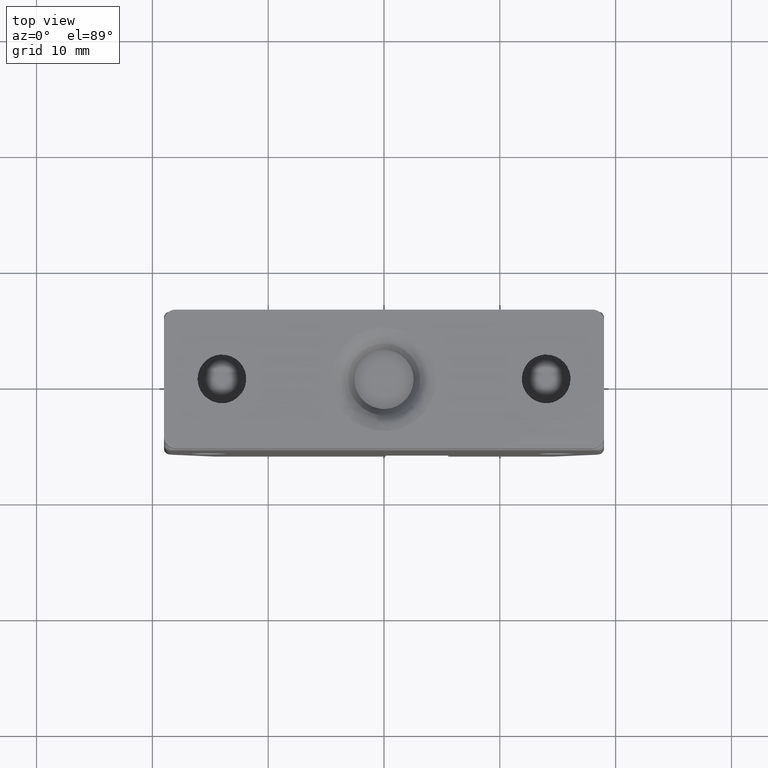
[diagram: clean part render]
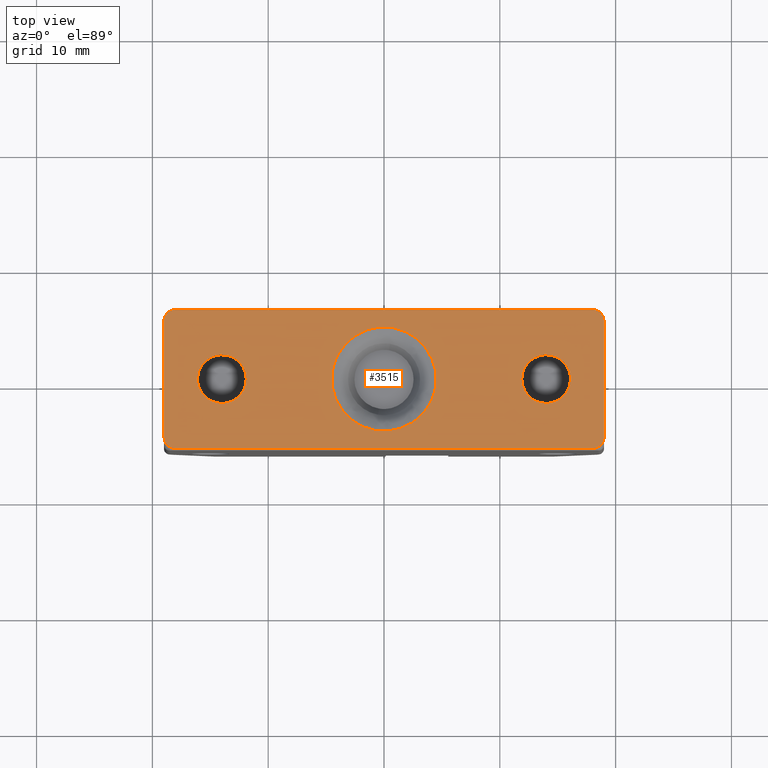
[diagram: same view with one face highlighted and labeled with its STEP entity id]
A machine part, top view. The second image highlights one B-rep face of the part: STEP entity #3515.
In plain terms, the highlighted face is a freeform B-spline surface patch.
Its self-contained STEP definition (entity closure, byte-faithful):
#2696=CARTESIAN_POINT('',(-13.871798066978030,-2.096083076678762,8.400000000000000));
#2697=VERTEX_POINT('',#2696);
#2703=CARTESIAN_POINT('',(-11.900000000060681,-3.407176E-012,8.400000000000000));
#2704=VERTEX_POINT('',#2703);
#2705=CARTESIAN_POINT('',(-11.900000000060681,-3.407176E-012,8.400000000000000));
#2706=CARTESIAN_POINT('',(-11.900000000060686,-1.975482740448824,8.400000000000000));
#2707=CARTESIAN_POINT('',(-13.871798066978025,-2.096083076678763,8.400000000000000));
#2715=(BOUNDED_CURVE()B_SPLINE_CURVE(2,(#2705,#2706,#2707),.UNSPECIFIED.,.F.,.U.)B_SPLINE_CURVE_WITH_KNOTS((3,3),(0.500000000000000,0.739332962237643),.UNSPECIFIED.)CURVE()GEOMETRIC_REPRESENTATION_ITEM()RATIONAL_B_SPLINE_CURVE((1.0,0.719603993288233,0.976072041663932))REPRESENTATION_ITEM(''));
#2716=EDGE_CURVE('',#2704,#2697,#2715,.T.);
#2718=CARTESIAN_POINT('',(-14.128201933128620,2.096083076671948,8.400000000000000));
#2719=VERTEX_POINT('',#2718);
#2720=CARTESIAN_POINT('',(-14.128201933128612,2.096083076671949,8.400000000000000));
#2721=CARTESIAN_POINT('',(-14.064160803006475,2.099999999989227,8.400000000000000));
#2722=CARTESIAN_POINT('',(-14.000000000053319,2.099999999989228,8.400000000000000));
#2723=CARTESIAN_POINT('',(-11.900000000060684,2.099999999989228,8.400000000000000));
#2724=CARTESIAN_POINT('',(-11.900000000060681,-3.407176E-012,8.400000000000000));
#2732=(BOUNDED_CURVE()B_SPLINE_CURVE(2,(#2720,#2721,#2722,#2723,#2724),.UNSPECIFIED.,.F.,.U.)B_SPLINE_CURVE_WITH_KNOTS((3,2,3),(0.239332962237643,0.250000000000000,0.500000000000000),.UNSPECIFIED.)CURVE()GEOMETRIC_REPRESENTATION_ITEM()RATIONAL_B_SPLINE_CURVE((0.976072041663932,0.987502787898314,1.0,0.707106781186547,1.0))REPRESENTATION_ITEM(''));
#2733=EDGE_CURVE('',#2719,#2704,#2732,.T.);
#2763=CARTESIAN_POINT('',(-16.100000000045959,-3.407176E-012,8.400000000000000));
#2764=VERTEX_POINT('',#2763);
#2765=CARTESIAN_POINT('',(-16.100000000045959,-3.407176E-012,8.400000000000000));
#2766=CARTESIAN_POINT('',(-16.100000000045952,1.975482740442009,8.400000000000000));
#2767=CARTESIAN_POINT('',(-14.128201933128613,2.096083076671949,8.400000000000000));
#2775=(BOUNDED_CURVE()B_SPLINE_CURVE(2,(#2765,#2766,#2767),.UNSPECIFIED.,.F.,.U.)B_SPLINE_CURVE_WITH_KNOTS((3,3),(0.0,0.239332962237643),.UNSPECIFIED.)CURVE()GEOMETRIC_REPRESENTATION_ITEM()RATIONAL_B_SPLINE_CURVE((1.0,0.719603993288233,0.976072041663932))REPRESENTATION_ITEM(''));
#2776=EDGE_CURVE('',#2764,#2719,#2775,.T.);
#2778=CARTESIAN_POINT('',(-13.871798066978025,-2.096083076678763,8.400000000000000));
#2779=CARTESIAN_POINT('',(-13.935839197100165,-2.099999999996042,8.400000000000000));
#2780=CARTESIAN_POINT('',(-14.000000000053319,-2.099999999996042,8.400000000000000));
#2781=CARTESIAN_POINT('',(-16.100000000045956,-2.099999999996042,8.400000000000000));
#2782=CARTESIAN_POINT('',(-16.100000000045959,-3.407176E-012,8.400000000000000));
#2790=(BOUNDED_CURVE()B_SPLINE_CURVE(2,(#2778,#2779,#2780,#2781,#2782),.UNSPECIFIED.,.F.,.U.)B_SPLINE_CURVE_WITH_KNOTS((3,2,3),(0.739332962237643,0.750000000000000,1.0),.UNSPECIFIED.)CURVE()GEOMETRIC_REPRESENTATION_ITEM()RATIONAL_B_SPLINE_CURVE((0.976072041663932,0.987502787898314,1.0,0.707106781186547,1.0))REPRESENTATION_ITEM(''));
#2791=EDGE_CURVE('',#2697,#2764,#2790,.T.);
#3000=CARTESIAN_POINT('',(14.128201933021190,-2.096083076678766,8.400000000000000));
#3001=VERTEX_POINT('',#3000);
#3007=CARTESIAN_POINT('',(16.099999999938539,-3.410605E-012,8.400000000000000));
#3008=VERTEX_POINT('',#3007);
#3009=CARTESIAN_POINT('',(16.099999999938539,-3.410605E-012,8.400000000000000));
#3010=CARTESIAN_POINT('',(16.099999999938536,-1.975482740448830,8.400000000000002));
#3011=CARTESIAN_POINT('',(14.128201933021193,-2.096083076678765,8.399999999999999));
#3019=(BOUNDED_CURVE()B_SPLINE_CURVE(2,(#3009,#3010,#3011),.UNSPECIFIED.,.F.,.U.)B_SPLINE_CURVE_WITH_KNOTS((3,3),(0.500000000000000,0.739332962237643),.UNSPECIFIED.)CURVE()GEOMETRIC_REPRESENTATION_ITEM()RATIONAL_B_SPLINE_CURVE((1.0,0.719603993288233,0.976072041663932))REPRESENTATION_ITEM(''));
#3020=EDGE_CURVE('',#3008,#3001,#3019,.T.);
#3022=CARTESIAN_POINT('',(13.871798066870610,2.096083076671945,8.400000000000000));
#3023=VERTEX_POINT('',#3022);
#3024=CARTESIAN_POINT('',(13.871798066870610,2.096083076671946,8.400000000000000));
#3025=CARTESIAN_POINT('',(13.935839196992742,2.099999999989225,8.400000000000000));
#3026=CARTESIAN_POINT('',(13.999999999945899,2.099999999989224,8.400000000000000));
#3027=CARTESIAN_POINT('',(16.099999999938532,2.099999999989224,8.400000000000000));
#3028=CARTESIAN_POINT('',(16.099999999938539,-3.410605E-012,8.400000000000000));
#3036=(BOUNDED_CURVE()B_SPLINE_CURVE(2,(#3024,#3025,#3026,#3027,#3028),.UNSPECIFIED.,.F.,.U.)B_SPLINE_CURVE_WITH_KNOTS((3,2,3),(0.239332962237643,0.250000000000000,0.500000000000000),.UNSPECIFIED.)CURVE()GEOMETRIC_REPRESENTATION_ITEM()RATIONAL_B_SPLINE_CURVE((0.976072041663932,0.987502787898314,1.0,0.707106781186547,1.0))REPRESENTATION_ITEM(''));
#3037=EDGE_CURVE('',#3023,#3008,#3036,.T.);
#3067=CARTESIAN_POINT('',(11.899999999953261,-3.410605E-012,8.400000000000000));
#3068=VERTEX_POINT('',#3067);
#3069=CARTESIAN_POINT('',(11.899999999953261,-3.410605E-012,8.400000000000000));
#3070=CARTESIAN_POINT('',(11.899999999953263,1.975482740442008,8.400000000000000));
#3071=CARTESIAN_POINT('',(13.871798066870600,2.096083076671945,8.399999999999999));
#3079=(BOUNDED_CURVE()B_SPLINE_CURVE(2,(#3069,#3070,#3071),.UNSPECIFIED.,.F.,.U.)B_SPLINE_CURVE_WITH_KNOTS((3,3),(0.0,0.239332962237643),.UNSPECIFIED.)CURVE()GEOMETRIC_REPRESENTATION_ITEM()RATIONAL_B_SPLINE_CURVE((1.0,0.719603993288233,0.976072041663932))REPRESENTATION_ITEM(''));
#3080=EDGE_CURVE('',#3068,#3023,#3079,.T.);
#3082=CARTESIAN_POINT('',(14.128201933021193,-2.096083076678765,8.399999999999999));
#3083=CARTESIAN_POINT('',(14.064160802899059,-2.099999999996045,8.400000000000000));
#3084=CARTESIAN_POINT('',(13.999999999945899,-2.099999999996045,8.400000000000000));
#3085=CARTESIAN_POINT('',(11.899999999953261,-2.099999999996045,8.400000000000000));
#3086=CARTESIAN_POINT('',(11.899999999953261,-3.410605E-012,8.400000000000000));
#3094=(BOUNDED_CURVE()B_SPLINE_CURVE(2,(#3082,#3083,#3084,#3085,#3086),.UNSPECIFIED.,.F.,.U.)B_SPLINE_CURVE_WITH_KNOTS((3,2,3),(0.739332962237643,0.750000000000000,1.0),.UNSPECIFIED.)CURVE()GEOMETRIC_REPRESENTATION_ITEM()RATIONAL_B_SPLINE_CURVE((0.976072041663932,0.987502787898315,1.0,0.707106781186547,1.0))REPRESENTATION_ITEM(''));
#3095=EDGE_CURVE('',#3001,#3068,#3094,.T.);
#3258=CARTESIAN_POINT('',(-3.943380059696138,2.167891533303249,8.400000000000000));
#3259=VERTEX_POINT('',#3258);
#3273=CARTESIAN_POINT('',(-4.500000000055100,-3.410466E-012,8.400000000000000));
#3274=VERTEX_POINT('',#3273);
#3275=CARTESIAN_POINT('',(-4.500000000055100,-3.410466E-012,8.400000000000000));
#3276=CARTESIAN_POINT('',(-4.499999999806614,1.155403621587050,8.400000000000000));
#3277=CARTESIAN_POINT('',(-3.943380059696137,2.167891533303249,8.400000000000000));
#3285=(BOUNDED_CURVE()B_SPLINE_CURVE(2,(#3275,#3276,#3277),.UNSPECIFIED.,.F.,.U.)B_SPLINE_CURVE_WITH_KNOTS((3,3),(0.0,0.082050816107036),.UNSPECIFIED.)CURVE()GEOMETRIC_REPRESENTATION_ITEM()RATIONAL_B_SPLINE_CURVE((1.0,0.903871489456558,0.870842360843062))REPRESENTATION_ITEM(''));
#3286=EDGE_CURVE('',#3274,#3259,#3285,.T.);
#3288=CARTESIAN_POINT('',(3.943380059696138,-2.167891533310069,8.399999999999999));
#3289=VERTEX_POINT('',#3288);
#3290=CARTESIAN_POINT('',(3.943380059696138,-2.167891533310069,8.399999999999999));
#3291=CARTESIAN_POINT('',(3.824206360642705,-2.384697434903158,8.400000000000002));
#3292=CARTESIAN_POINT('',(3.541414295097837,-2.811517136235743,8.399999999999999));
#3293=CARTESIAN_POINT('',(3.062644237607502,-3.320108352274720,8.399999999999999));
#3294=CARTESIAN_POINT('',(2.477983191689846,-3.779632251900886,8.400000000000016));
#3295=CARTESIAN_POINT('',(1.880148186429658,-4.111164978560826,8.399999999999949));
#3296=CARTESIAN_POINT('',(1.149995207915080,-4.370592244534727,8.400000000000031));
#3297=CARTESIAN_POINT('',(0.508506816770866,-4.488402516735532,8.399999999999988));
#3298=CARTESIAN_POINT('',(-0.249984474954547,-4.512803980713327,8.400000000000013));
#3299=CARTESIAN_POINT('',(-0.928378960144460,-4.425762362881049,8.399999999999986));
#3300=CARTESIAN_POINT('',(-1.669156352947316,-4.198432939596492,8.400000000000002));
#3301=CARTESIAN_POINT('',(-2.367231118986370,-3.859260186526037,8.399999999999995));
#3302=CARTESIAN_POINT('',(-2.964345589350004,-3.411828357541758,8.400000000000020));
#3303=CARTESIAN_POINT('',(-3.491526411107899,-2.865931208942745,8.400000000000008));
#3304=CARTESIAN_POINT('',(-3.869697893895844,-2.334533017724503,8.399999999999981));
#3305=CARTESIAN_POINT('',(-4.178479953233402,-1.709231662596770,8.400000000000016));
#3306=CARTESIAN_POINT('',(-4.426884625076130,-0.958622126401327,8.399999999999992));
#3307=CARTESIAN_POINT('',(-4.500101237488820,-0.371105051717921,8.399999999999976));
#3308=CARTESIAN_POINT('',(-4.500000000055100,-3.410466E-012,8.400000000000000));
#3309=B_SPLINE_CURVE_WITH_KNOTS('',3,(#3290,#3291,#3292,#3293,#3294,#3295,#3296,#3297,#3298,#3299,#3300,#3301,#3302,#3303,#3304,#3305,#3306,#3307,#3308),.UNSPECIFIED.,.F.,.U.,(4,1,1,1,1,1,1,1,1,1,1,1,1,1,1,1,4),(0.000000030563456,0.742203889745745,1.530799776799331,2.087459032400474,2.968821323137799,3.571864845586623,4.406840036550884,4.917104166606298,5.844835925426524,6.447890164458012,7.236494469969927,8.164249707795777,8.674517140209691,9.509507342878527,10.112554800119090,10.761986831711081,11.875272806694801),.UNSPECIFIED.);
#3310=EDGE_CURVE('',#3289,#3274,#3309,.T.);
#3359=CARTESIAN_POINT('',(4.500000000055100,-3.410605E-012,8.400000000000000));
#3360=VERTEX_POINT('',#3359);
#3361=CARTESIAN_POINT('',(4.500000000055100,-3.410605E-012,8.400000000000000));
#3362=CARTESIAN_POINT('',(4.499999999806615,-1.155403621593870,8.400000000000000));
#3363=CARTESIAN_POINT('',(3.943380059696138,-2.167891533310070,8.399999999999999));
#3371=(BOUNDED_CURVE()B_SPLINE_CURVE(2,(#3361,#3362,#3363),.UNSPECIFIED.,.F.,.U.)B_SPLINE_CURVE_WITH_KNOTS((3,3),(0.500000000000000,0.582050816107036),.UNSPECIFIED.)CURVE()GEOMETRIC_REPRESENTATION_ITEM()RATIONAL_B_SPLINE_CURVE((1.0,0.903871489456558,0.870842360843062))REPRESENTATION_ITEM(''));
#3372=EDGE_CURVE('',#3360,#3289,#3371,.T.);
#3374=CARTESIAN_POINT('',(-3.943380059696138,2.167891533303249,8.400000000000000));
#3375=CARTESIAN_POINT('',(-3.824210066108246,2.384699587601643,8.400000000000002));
#3376=CARTESIAN_POINT('',(-3.575683348158285,2.759773762606233,8.399999999999995));
#3377=CARTESIAN_POINT('',(-3.160174514410992,3.219793231620461,8.399999999999999));
#3378=CARTESIAN_POINT('',(-2.691388805990171,3.624792891323443,8.400000000000015));
#3379=CARTESIAN_POINT('',(-2.156985186348380,3.969850060704459,8.399999999999977));
#3380=CARTESIAN_POINT('',(-1.604597706032400,4.215666101578752,8.399999999999999));
#3381=CARTESIAN_POINT('',(-1.027906060214288,4.394161980446580,8.399999999999997));
#3382=CARTESIAN_POINT('',(-0.324669045469935,4.515886446604847,8.400000000000023));
#3383=CARTESIAN_POINT('',(0.406178086185675,4.501711703555927,8.399999999999945));
#3384=CARTESIAN_POINT('',(1.076519368948576,4.380250010033963,8.400000000000073));
#3385=CARTESIAN_POINT('',(1.728433245350994,4.180297062072626,8.399999999999940));
#3386=CARTESIAN_POINT('',(2.476125642573424,3.797713634089929,8.400000000000020));
#3387=CARTESIAN_POINT('',(3.222953509587842,3.188492743032616,8.399999999999997));
#3388=CARTESIAN_POINT('',(3.767336887091098,2.508591319156269,8.399999999999999));
#3389=CARTESIAN_POINT('',(4.175814038643297,1.742137116815214,8.400000000000009));
#3390=CARTESIAN_POINT('',(4.436006933545203,0.927731206359360,8.399999999999977));
#3391=CARTESIAN_POINT('',(4.500037569016865,0.309248195884243,8.400000000000029));
#3392=CARTESIAN_POINT('',(4.500000000055100,-3.410605E-012,8.400000000000000));
#3393=B_SPLINE_CURVE_WITH_KNOTS('',3,(#3374,#3375,#3376,#3377,#3378,#3379,#3380,#3381,#3382,#3383,#3384,#3385,#3386,#3387,#3388,#3389,#3390,#3391,#3392),.UNSPECIFIED.,.F.,.U.,(4,1,1,1,1,1,1,1,1,1,1,1,1,1,1,1,4),(0.000000030550018,0.742203889733132,1.345247072046858,1.855517487288996,2.597729414893385,3.247151394638959,3.664650374708641,4.406840036542501,5.380957365591712,5.844835925419722,6.447890164451877,7.422039370796668,8.349802033187444,9.323955179871344,10.019774710953040,10.947530941025899,11.875272806694850),.UNSPECIFIED.);
#3394=EDGE_CURVE('',#3259,#3360,#3393,.T.);
#3402=CARTESIAN_POINT('',(-20.898099926349449,6.599399976610666,8.400000000000000));
#3403=CARTESIAN_POINT('',(20.898100945586521,6.599399976610666,8.400000000000000));
#3404=CARTESIAN_POINT('',(-20.898099926349449,-6.599400298737627,8.400000000000000));
#3405=CARTESIAN_POINT('',(20.898100945586521,-6.599400298737627,8.400000000000000));
#3406=B_SPLINE_SURFACE_WITH_KNOTS('',1,1,((#3402,#3404),(#3403,#3405)),.UNSPECIFIED.,.F.,.F.,.U.,(2,2),(2,2),(0.0,41.796200871935973),(0.0,13.198800275348290),.UNSPECIFIED.);
#3407=CARTESIAN_POINT('',(18.999999999998501,-5.000000000130880,8.399999999999960));
#3408=VERTEX_POINT('',#3407);
#3409=CARTESIAN_POINT('',(18.999999999998501,4.999999999869000,8.399999999999960));
#3410=VERTEX_POINT('',#3409);
#3411=CARTESIAN_POINT('',(18.999999999998501,-5.000000000130880,8.399999999999960));
#3412=CARTESIAN_POINT('',(18.999999999998501,4.999999999869000,8.399999999999960));
#3413=QUASI_UNIFORM_CURVE('',1,(#3411,#3412),.UNSPECIFIED.,.F.,.U.);
#3414=EDGE_CURVE('',#3408,#3410,#3413,.T.);
#3415=ORIENTED_EDGE('',*,*,#3414,.T.);
#3416=CARTESIAN_POINT('',(17.999999999998501,5.999999999869000,8.399999999999960));
#3417=VERTEX_POINT('',#3416);
#3418=CARTESIAN_POINT('',(18.999999999998501,4.999999999869000,8.399999999999960));
#3419=CARTESIAN_POINT('',(18.999999999998497,5.999999999868999,8.399999999999960));
#3420=CARTESIAN_POINT('',(17.999999999998501,5.999999999869000,8.399999999999960));
#3428=(BOUNDED_CURVE()B_SPLINE_CURVE(2,(#3418,#3419,#3420),.UNSPECIFIED.,.F.,.U.)CURVE()GEOMETRIC_REPRESENTATION_ITEM()QUASI_UNIFORM_CURVE()RATIONAL_B_SPLINE_CURVE((1.0,0.707106781186548,1.0))REPRESENTATION_ITEM(''));
#3429=EDGE_CURVE('',#3410,#3417,#3428,.T.);
#3430=ORIENTED_EDGE('',*,*,#3429,.T.);
#3431=CARTESIAN_POINT('',(-18.000000000000849,5.999999999869000,8.399999999999960));
#3432=VERTEX_POINT('',#3431);
#3433=CARTESIAN_POINT('',(17.999999999998501,5.999999999869000,8.399999999999960));
#3434=CARTESIAN_POINT('',(-18.000000000000849,5.999999999869000,8.399999999999960));
#3435=QUASI_UNIFORM_CURVE('',1,(#3433,#3434),.UNSPECIFIED.,.F.,.U.);
#3436=EDGE_CURVE('',#3417,#3432,#3435,.T.);
#3437=ORIENTED_EDGE('',*,*,#3436,.T.);
#3438=CARTESIAN_POINT('',(-19.000000000000849,4.999999999869000,8.399999999999960));
#3439=VERTEX_POINT('',#3438);
#3440=CARTESIAN_POINT('',(-18.000000000000849,5.999999999869000,8.399999999999960));
#3441=CARTESIAN_POINT('',(-19.000000000000842,5.999999999868999,8.399999999999960));
#3442=CARTESIAN_POINT('',(-19.000000000000849,4.999999999869000,8.399999999999960));
#3450=(BOUNDED_CURVE()B_SPLINE_CURVE(2,(#3440,#3441,#3442),.UNSPECIFIED.,.F.,.U.)CURVE()GEOMETRIC_REPRESENTATION_ITEM()QUASI_UNIFORM_CURVE()RATIONAL_B_SPLINE_CURVE((1.0,0.707106781186548,1.0))REPRESENTATION_ITEM(''));
#3451=EDGE_CURVE('',#3432,#3439,#3450,.T.);
#3452=ORIENTED_EDGE('',*,*,#3451,.T.);
#3453=CARTESIAN_POINT('',(-19.000000000000849,-5.000000000130880,8.399999999999960));
#3454=VERTEX_POINT('',#3453);
#3455=CARTESIAN_POINT('',(-19.000000000000849,4.999999999869000,8.399999999999960));
#3456=CARTESIAN_POINT('',(-19.000000000000849,-5.000000000130880,8.399999999999960));
#3457=QUASI_UNIFORM_CURVE('',1,(#3455,#3456),.UNSPECIFIED.,.F.,.U.);
#3458=EDGE_CURVE('',#3439,#3454,#3457,.T.);
#3459=ORIENTED_EDGE('',*,*,#3458,.T.);
#3460=CARTESIAN_POINT('',(-18.000000000000849,-6.000000000130880,8.399999999999960));
#3461=VERTEX_POINT('',#3460);
#3462=CARTESIAN_POINT('',(-19.000000000000849,-5.000000000130880,8.399999999999960));
#3463=CARTESIAN_POINT('',(-19.000000000000842,-6.000000000130881,8.399999999999960));
#3464=CARTESIAN_POINT('',(-18.000000000000849,-6.000000000130880,8.399999999999960));
#3472=(BOUNDED_CURVE()B_SPLINE_CURVE(2,(#3462,#3463,#3464),.UNSPECIFIED.,.F.,.U.)CURVE()GEOMETRIC_REPRESENTATION_ITEM()QUASI_UNIFORM_CURVE()RATIONAL_B_SPLINE_CURVE((1.0,0.707106781186548,1.0))REPRESENTATION_ITEM(''));
#3473=EDGE_CURVE('',#3454,#3461,#3472,.T.);
#3474=ORIENTED_EDGE('',*,*,#3473,.T.);
#3475=CARTESIAN_POINT('',(17.999999999998501,-6.000000000130880,8.399999999999960));
#3476=VERTEX_POINT('',#3475);
#3477=CARTESIAN_POINT('',(-18.000000000000849,-6.000000000130880,8.399999999999960));
#3478=CARTESIAN_POINT('',(17.999999999998501,-6.000000000130880,8.399999999999960));
#3479=QUASI_UNIFORM_CURVE('',1,(#3477,#3478),.UNSPECIFIED.,.F.,.U.);
#3480=EDGE_CURVE('',#3461,#3476,#3479,.T.);
#3481=ORIENTED_EDGE('',*,*,#3480,.T.);
#3482=CARTESIAN_POINT('',(17.999999999998501,-6.000000000130880,8.399999999999960));
#3483=CARTESIAN_POINT('',(18.999999999998497,-6.000000000130881,8.399999999999960));
#3484=CARTESIAN_POINT('',(18.999999999998501,-5.000000000130880,8.399999999999960));
#3492=(BOUNDED_CURVE()B_SPLINE_CURVE(2,(#3482,#3483,#3484),.UNSPECIFIED.,.F.,.U.)CURVE()GEOMETRIC_REPRESENTATION_ITEM()QUASI_UNIFORM_CURVE()RATIONAL_B_SPLINE_CURVE((1.0,0.707106781186548,1.0))REPRESENTATION_ITEM(''));
#3493=EDGE_CURVE('',#3476,#3408,#3492,.T.);
#3494=ORIENTED_EDGE('',*,*,#3493,.T.);
#3495=EDGE_LOOP('',(#3415,#3430,#3437,#3452,#3459,#3474,#3481,#3494));
#3496=FACE_OUTER_BOUND('',#3495,.T.);
#3497=ORIENTED_EDGE('',*,*,#3286,.T.);
#3498=ORIENTED_EDGE('',*,*,#3394,.T.);
#3499=ORIENTED_EDGE('',*,*,#3372,.T.);
#3500=ORIENTED_EDGE('',*,*,#3310,.T.);
#3501=EDGE_LOOP('',(#3497,#3498,#3499,#3500));
#3502=FACE_BOUND('',#3501,.T.);
#3503=ORIENTED_EDGE('',*,*,#3020,.T.);
#3504=ORIENTED_EDGE('',*,*,#3095,.T.);
#3505=ORIENTED_EDGE('',*,*,#3080,.T.);
#3506=ORIENTED_EDGE('',*,*,#3037,.T.);
#3507=EDGE_LOOP('',(#3503,#3504,#3505,#3506));
#3508=FACE_BOUND('',#3507,.T.);
#3509=ORIENTED_EDGE('',*,*,#2716,.T.);
#3510=ORIENTED_EDGE('',*,*,#2791,.T.);
#3511=ORIENTED_EDGE('',*,*,#2776,.T.);
#3512=ORIENTED_EDGE('',*,*,#2733,.T.);
#3513=EDGE_LOOP('',(#3509,#3510,#3511,#3512));
#3514=FACE_BOUND('',#3513,.T.);
#3515=ADVANCED_FACE('',(#3496,#3502,#3508,#3514),#3406,.F.);